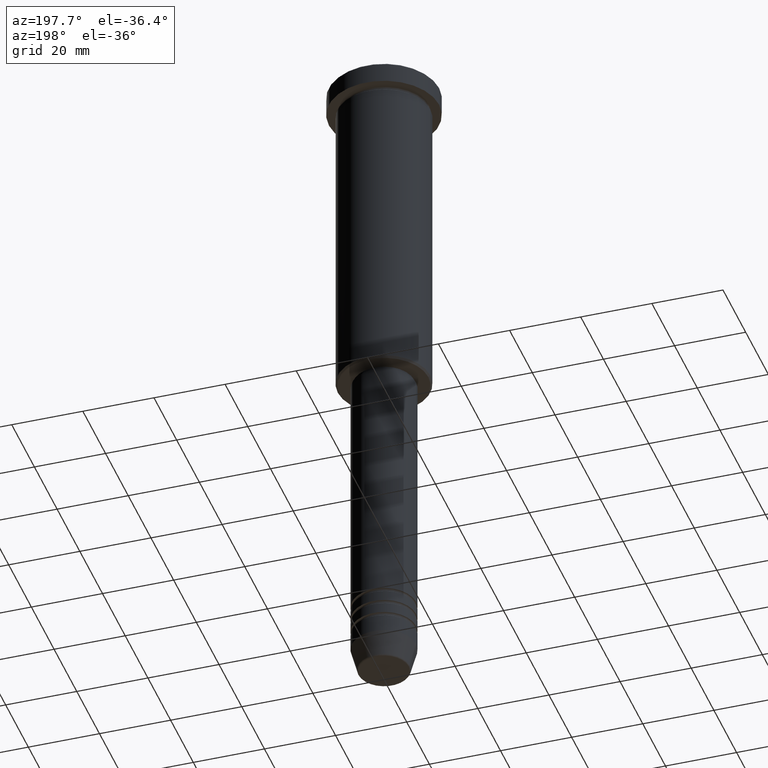
[diagram: clean part render]
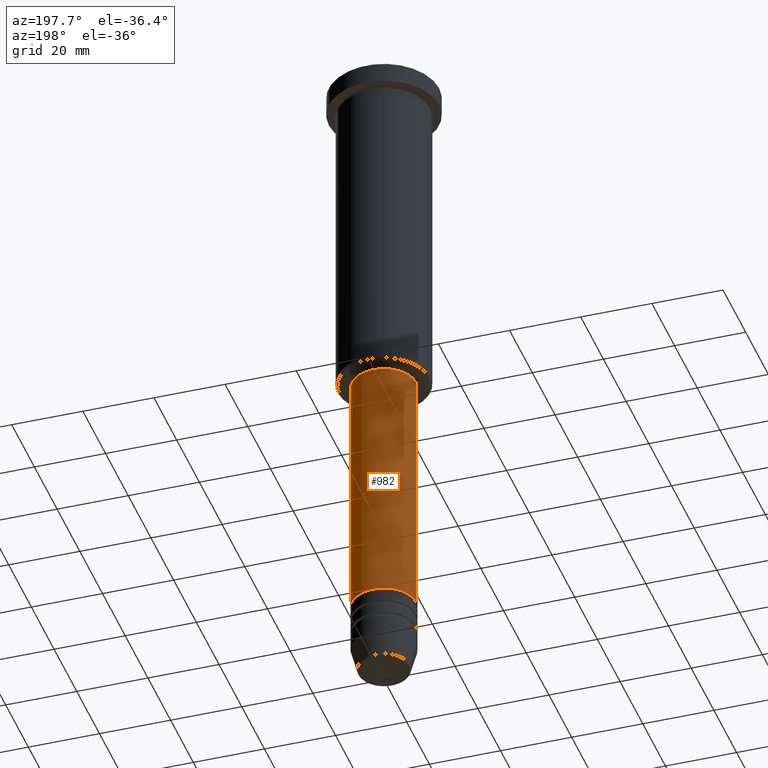
[diagram: same view with one face highlighted and labeled with its STEP entity id]
A machine part, auxiliary view. The second image highlights one B-rep face of the part: STEP entity #982.
In plain terms, the highlighted cylindrical surface (edge-blend (fillet) strip) has radius 9 mm, axis along (-0, -0, 1).
Its self-contained STEP definition (entity closure, byte-faithful):
#9 = FACE_OUTER_BOUND ( 'NONE', #291, .T. ) ;
#10 = EDGE_CURVE ( 'NONE', #751, #226, #1012, .T. ) ;
#56 = ORIENTED_EDGE ( 'NONE', *, *, #1107, .T. ) ;
#60 = CARTESIAN_POINT ( 'NONE',  ( -8.999999999999998224, 1.102182119232617714E-15, -97.00000000000002842 ) ) ;
#70 = CARTESIAN_POINT ( 'NONE',  ( 0.000000000000000000, 0.000000000000000000, -97.00000000000002842 ) ) ;
#72 = ORIENTED_EDGE ( 'NONE', *, *, #783, .F. ) ;
#97 = ORIENTED_EDGE ( 'NONE', *, *, #705, .F. ) ;
#166 = CARTESIAN_POINT ( 'NONE',  ( 0.000000000000000000, 0.000000000000000000, 0.000000000000000000 ) ) ;
#226 = VERTEX_POINT ( 'NONE', #60 ) ;
#234 = CARTESIAN_POINT ( 'NONE',  ( 0.000000000000000000, 0.000000000000000000, -169.9999999999999147 ) ) ;
#252 = CIRCLE ( 'NONE', #910, 9.000000000000001776 ) ;
#291 = EDGE_LOOP ( 'NONE', ( #56, #877, #97, #72 ) ) ;
#309 = DIRECTION ( 'NONE',  ( 1.000000000000000000, 0.000000000000000000, 0.000000000000000000 ) ) ;
#425 = VECTOR ( 'NONE', #1017, 1000.000000000000000 ) ;
#527 = DIRECTION ( 'NONE',  ( -0.000000000000000000, -0.000000000000000000, 1.000000000000000000 ) ) ;
#532 = CARTESIAN_POINT ( 'NONE',  ( 9.000000000000001776, 0.000000000000000000, -169.9999999999999147 ) ) ;
#551 = CARTESIAN_POINT ( 'NONE',  ( 9.000000000000000000, 0.000000000000000000, 0.000000000000000000 ) ) ;
#625 = CYLINDRICAL_SURFACE ( 'NONE', #986, 9.000000000000000000 ) ;
#626 = DIRECTION ( 'NONE',  ( 1.000000000000000000, 0.000000000000000000, 0.000000000000000000 ) ) ;
#705 = EDGE_CURVE ( 'NONE', #808, #226, #1125, .T. ) ;
#751 = VERTEX_POINT ( 'NONE', #1011 ) ;
#783 = EDGE_CURVE ( 'NONE', #833, #808, #1106, .T. ) ;
#808 = VERTEX_POINT ( 'NONE', #827 ) ;
#827 = CARTESIAN_POINT ( 'NONE',  ( 8.999999999999998224, 0.000000000000000000, -97.00000000000002842 ) ) ;
#833 = VERTEX_POINT ( 'NONE', #532 ) ;
#853 = VECTOR ( 'NONE', #925, 1000.000000000000000 ) ;
#877 = ORIENTED_EDGE ( 'NONE', *, *, #10, .T. ) ;
#897 = DIRECTION ( 'NONE',  ( 1.000000000000000000, 0.000000000000000000, 0.000000000000000000 ) ) ;
#910 = AXIS2_PLACEMENT_3D ( 'NONE', #234, #962, #309 ) ;
#925 = DIRECTION ( 'NONE',  ( -0.000000000000000000, -0.000000000000000000, 1.000000000000000000 ) ) ;
#943 = AXIS2_PLACEMENT_3D ( 'NONE', #70, #1079, #626 ) ;
#962 = DIRECTION ( 'NONE',  ( -0.000000000000000000, -0.000000000000000000, 1.000000000000000000 ) ) ;
#982 = ADVANCED_FACE ( 'NONE', ( #9 ), #625, .T. ) ;
#986 = AXIS2_PLACEMENT_3D ( 'NONE', #166, #527, #897 ) ;
#1002 = CARTESIAN_POINT ( 'NONE',  ( -9.000000000000000000, 1.102182119232617714E-15, 0.000000000000000000 ) ) ;
#1011 = CARTESIAN_POINT ( 'NONE',  ( -9.000000000000001776, 1.102182119232617911E-15, -169.9999999999999147 ) ) ;
#1012 = LINE ( 'NONE', #1002, #853 ) ;
#1017 = DIRECTION ( 'NONE',  ( -0.000000000000000000, -0.000000000000000000, 1.000000000000000000 ) ) ;
#1079 = DIRECTION ( 'NONE',  ( -0.000000000000000000, -0.000000000000000000, 1.000000000000000000 ) ) ;
#1106 = LINE ( 'NONE', #551, #425 ) ;
#1107 = EDGE_CURVE ( 'NONE', #833, #751, #252, .T. ) ;
#1125 = CIRCLE ( 'NONE', #943, 8.999999999999998224 ) ;